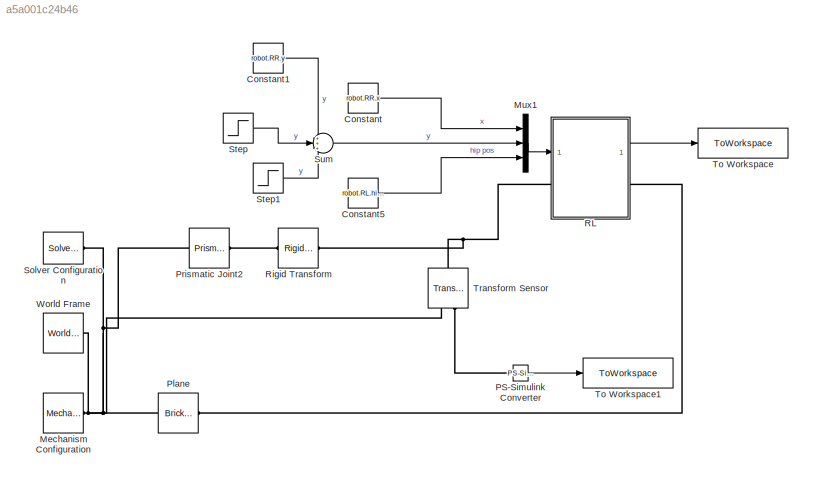
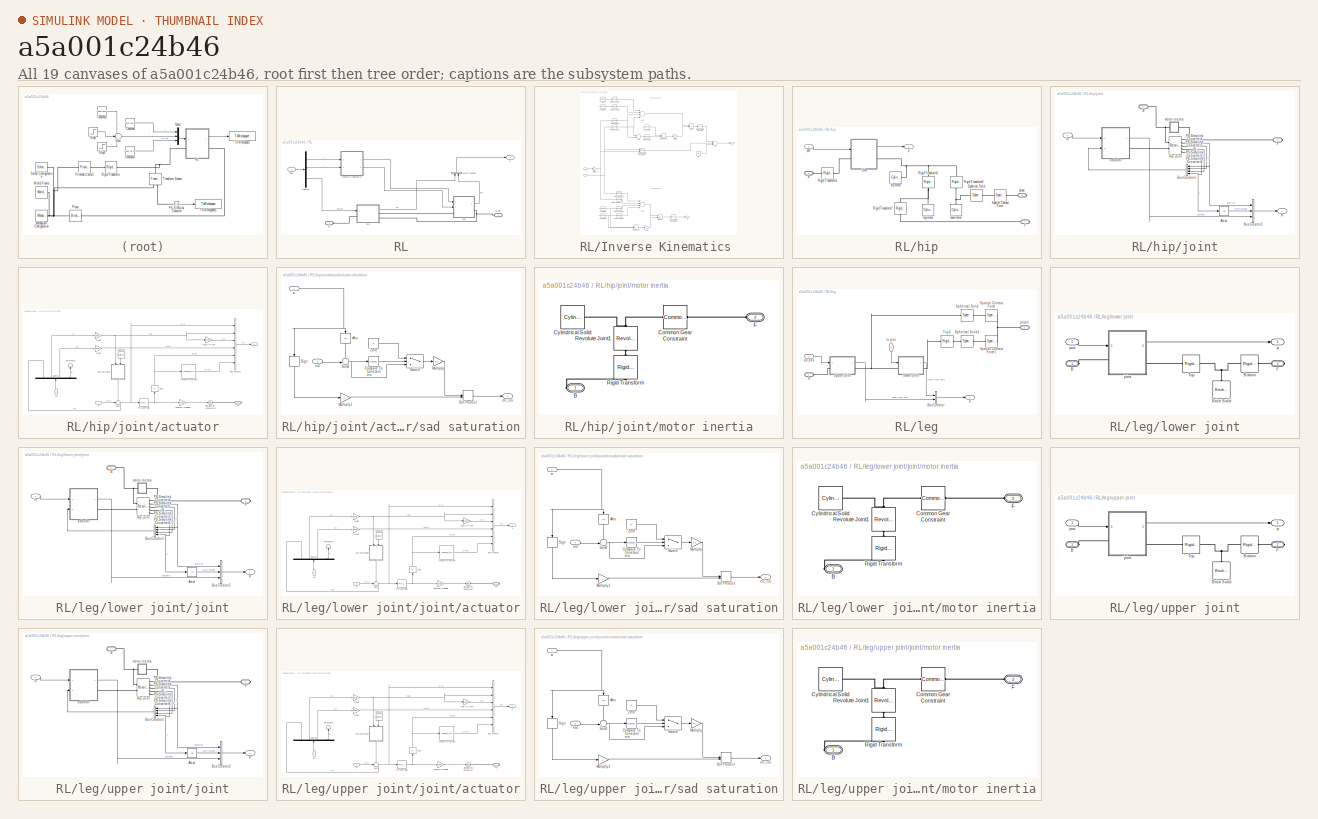
[diagram: thumbnail index - all 19 canvases of the model, root first then tree order]
MODEL slx_a5a001c24b46
KIND model
CONFIG AbsTol = auto
CONFIG EnableMultiTasking = on
CONFIG FixedStep = 0.01
CONFIG MaxStep = auto
CONFIG MinStep = auto
CONFIG RelTol = 1e-3
CONFIG SampleTimeConstraint = Unconstrained
CONFIG Solver = ode23t
CONFIG SolverName = ode23t
CONFIG StartTime = 0.0
CONFIG StopTime = 5
BLOCK [Constant] Constant
  Value = robot.RR.x
BLOCK [Constant] Constant1
  Commented = on
  Value = robot.RR.y
BLOCK [Constant] Constant5
  Value = robot.RL.hip.joint.base_angle
BLOCK [Reference] Mechanism Configuration  REF=sm_lib/Utilities/Mechanism
Configuration
  Ports = [0, 0, 0, 0, 0, 0, 1]
  SourceBlock = sm_lib/Utilities/Mechanism\nConfiguration
  SourceProductBaseCode = MS
  SourceProductName = Simscape Multibody
  SourceType = Mechanism\nConfiguration
BLOCK [Mux] Mux1
  DisplayOption = bar
  Inputs = 3
  Ports = [3, 1]
BLOCK [Reference] PS-Simulink Converter  REF=nesl_utility/PS-Simulink
Converter
  Ports = [0, 1, 0, 0, 0, 1]
  SourceBlock = nesl_utility/PS-Simulink\nConverter
  SourceProductBaseCode = SS
  SourceProductName = Simscape
  SourceType = PS-Simulink\nConverter
BLOCK [Reference] Plane   REF=sm_lib/Body Elements/Brick Solid
  Ports = [0, 0, 0, 0, 0, 1, 1]
  SourceBlock = sm_lib/Body Elements/Brick Solid
  SourceProductBaseCode = MS
  SourceProductName = Simscape Multibody
  SourceType = Brick Solid
BLOCK [Reference] Prismatic Joint2  REF=sm_lib/Joints/Prismatic
Joint
  Ports = [0, 0, 0, 0, 0, 1, 1]
  SourceBlock = sm_lib/Joints/Prismatic\nJoint
  SourceProductBaseCode = MS
  SourceProductName = Simscape Multibody
  SourceType = Prismatic\nJoint
BLOCK [SubSystem] RL
  Ports = [1, 1, 0, 0, 0, 1, 1]
  RequestExecContextInheritance = off
BLOCK [PMIOPort] RL/B
  Port = 2
  Side = Left
BLOCK [BusCreator] RL/Bus Creator
  DisplayOption = bar
  InheritFromInputs = on
  Inputs = 2
  Ports = [2, 1]
BLOCK [Demux] RL/Demux
  DisplayOption = bar
  Outputs = 3
  Ports = [1, 3]
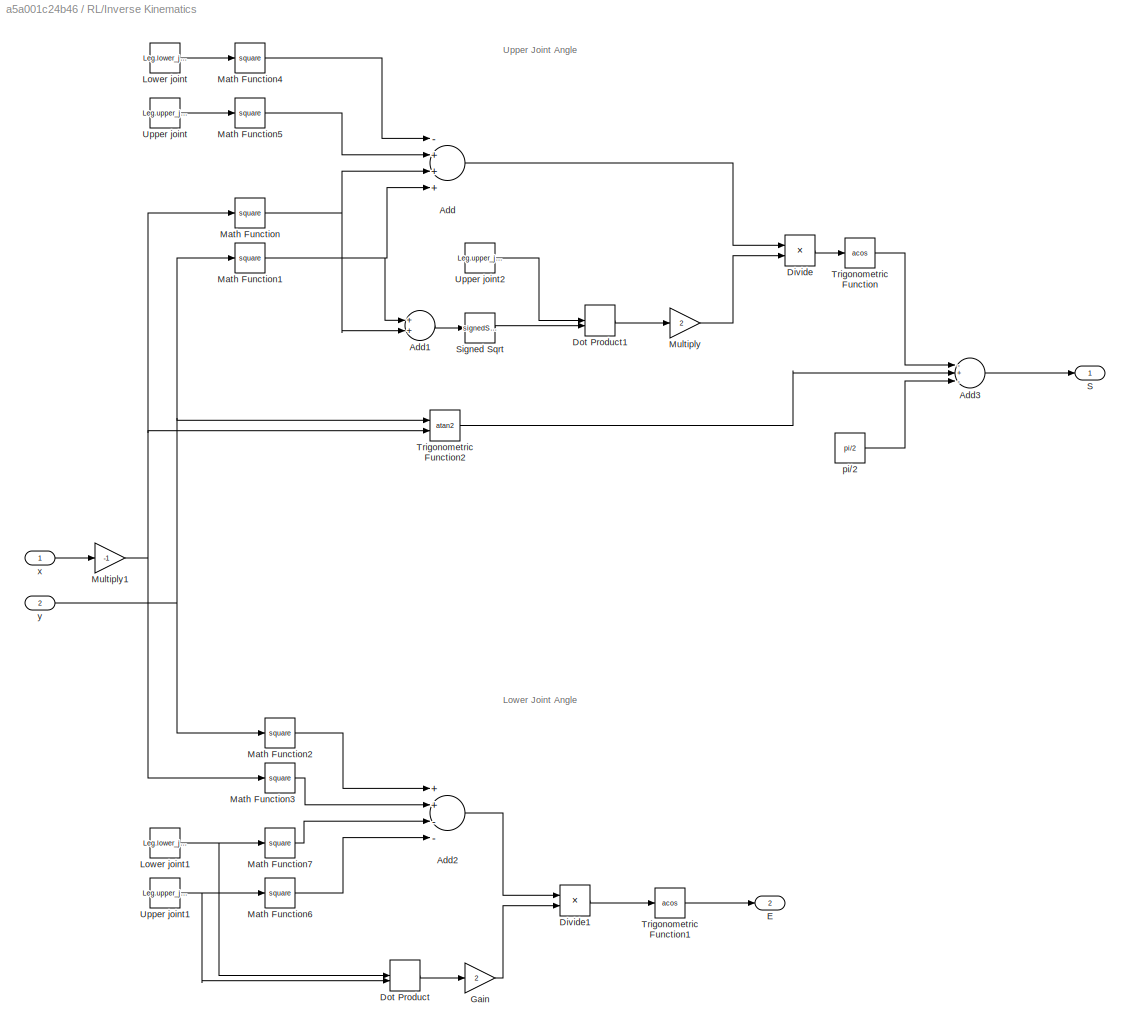
BLOCK [SubSystem] RL/Inverse Kinematics 
  Ports = [2, 2]
  RequestExecContextInheritance = off
BLOCK [Sum] RL/Inverse Kinematics /Add
  InputSameDT = off
  Inputs = -+++
  OutDataTypeStr = Inherit: Inherit via internal rule
  Ports = [4, 1]
  SaturateOnIntegerOverflow = off
BLOCK [Sum] RL/Inverse Kinematics /Add1
  InputSameDT = off
  OutDataTypeStr = Inherit: Inherit via internal rule
  Ports = [2, 1]
  SaturateOnIntegerOverflow = off
BLOCK [Sum] RL/Inverse Kinematics /Add2
  InputSameDT = off
  Inputs = ++--
  OutDataTypeStr = Inherit: Inherit via internal rule
  Ports = [4, 1]
  SaturateOnIntegerOverflow = off
BLOCK [Sum] RL/Inverse Kinematics /Add3
  InputSameDT = off
  Inputs = -+-
  OutDataTypeStr = Inherit: Inherit via internal rule
  Ports = [3, 1]
  SaturateOnIntegerOverflow = off
BLOCK [Product] RL/Inverse Kinematics /Divide
  InputSameDT = off
  Inputs = */
  OutDataTypeStr = Inherit: Inherit via internal rule
  Ports = [2, 1]
  RndMeth = Floor
  SaturateOnIntegerOverflow = off
BLOCK [Product] RL/Inverse Kinematics /Divide1
  InputSameDT = off
  Inputs = */
  OutDataTypeStr = Inherit: Inherit via internal rule
  Ports = [2, 1]
  RndMeth = Floor
  SaturateOnIntegerOverflow = off
BLOCK [DotProduct] RL/Inverse Kinematics /Dot Product
  OutDataTypeStr = Inherit: Inherit via internal rule
BLOCK [DotProduct] RL/Inverse Kinematics /Dot Product1
  OutDataTypeStr = Inherit: Inherit via internal rule
BLOCK [Outport] RL/Inverse Kinematics /E
  IconDisplay = Port number
  Port = 2
BLOCK [Gain] RL/Inverse Kinematics /Gain
  Gain = 2
  OutDataTypeStr = Inherit: Inherit via internal rule
  ParamDataTypeStr = Inherit: Inherit via internal rule
  SaturateOnIntegerOverflow = off
BLOCK [Constant] RL/Inverse Kinematics /Lower joint
  Value = Leg.lower_joint.body.length
BLOCK [Constant] RL/Inverse Kinematics /Lower joint1
  Value = Leg.lower_joint.body.length
BLOCK [Math] RL/Inverse Kinematics /Math Function
  Operator = square
  Ports = [1, 1]
  SignedPower = off
BLOCK [Math] RL/Inverse Kinematics /Math Function1
  Operator = square
  Ports = [1, 1]
  SignedPower = off
BLOCK [Math] RL/Inverse Kinematics /Math Function2
  Operator = square
  Ports = [1, 1]
  SignedPower = off
BLOCK [Math] RL/Inverse Kinematics /Math Function3
  Operator = square
  Ports = [1, 1]
  SignedPower = off
BLOCK [Math] RL/Inverse Kinematics /Math Function4
  Operator = square
  Ports = [1, 1]
  SignedPower = off
BLOCK [Math] RL/Inverse Kinematics /Math Function5
  Operator = square
  Ports = [1, 1]
  SignedPower = off
BLOCK [Math] RL/Inverse Kinematics /Math Function6
  Operator = square
  Ports = [1, 1]
  SignedPower = off
BLOCK [Math] RL/Inverse Kinematics /Math Function7
  Operator = square
  Ports = [1, 1]
  SignedPower = off
BLOCK [Gain] RL/Inverse Kinematics /Multiply
  Gain = 2
  OutDataTypeStr = Inherit: Inherit via internal rule
  ParamDataTypeStr = Inherit: Inherit via internal rule
  SaturateOnIntegerOverflow = off
BLOCK [Gain] RL/Inverse Kinematics /Multiply1
  Gain = -1
  OutDataTypeStr = Inherit: Inherit via internal rule
  ParamDataTypeStr = Inherit: Inherit via internal rule
  SaturateOnIntegerOverflow = off
BLOCK [Outport] RL/Inverse Kinematics /S
  IconDisplay = Port number
BLOCK [Sqrt] RL/Inverse Kinematics /Signed Sqrt
  Operator = signedSqrt
BLOCK [Trigonometry] RL/Inverse Kinematics /Trigonometric Function
  Operator = acos
  Ports = [1, 1]
BLOCK [Trigonometry] RL/Inverse Kinematics /Trigonometric Function1
  Operator = acos
  Ports = [1, 1]
BLOCK [Trigonometry] RL/Inverse Kinematics /Trigonometric Function2
  Operator = atan2
  Ports = [2, 1]
BLOCK [Constant] RL/Inverse Kinematics /Upper joint
  Value = Leg.upper_joint.body.length
BLOCK [Constant] RL/Inverse Kinematics /Upper joint1
  Value = Leg.upper_joint.body.length
BLOCK [Constant] RL/Inverse Kinematics /Upper joint2
  Value = Leg.upper_joint.body.length
BLOCK [Constant] RL/Inverse Kinematics /pi//2
  Value = pi/2
BLOCK [Inport] RL/Inverse Kinematics /x
  IconDisplay = Port number
BLOCK [Inport] RL/Inverse Kinematics /y
  IconDisplay = Port number
  Port = 2
BLOCK [SubSystem] RL/hip
  Ports = [1, 1, 0, 0, 0, 1, 2]
  RequestExecContextInheritance = off
BLOCK [PMIOPort] RL/hip/B
  Side = Left
BLOCK [PMIOPort] RL/hip/F
  Port = 2
  Side = Right
BLOCK [Reference] RL/hip/Rigid Transform1  REF=sm_lib/Frames and
Transforms/Rigid
Transform
  Ports = [0, 0, 0, 0, 0, 1, 1]
  SourceBlock = sm_lib/Frames and\nTransforms/Rigid\nTransform
  SourceProductBaseCode = MS
  SourceProductName = Simscape Multibody
  SourceType = Rigid\nTransform
BLOCK [Reference] RL/hip/Rigid Transform6  REF=sm_lib/Frames and
Transforms/Rigid
Transform
  Ports = [0, 0, 0, 0, 0, 1, 1]
  SourceBlock = sm_lib/Frames and\nTransforms/Rigid\nTransform
  SourceProductBaseCode = MS
  SourceProductName = Simscape Multibody
  SourceType = Rigid\nTransform
BLOCK [Reference] RL/hip/Rigid Transform7  REF=sm_lib/Frames and
Transforms/Rigid
Transform
  Ports = [0, 0, 0, 0, 0, 1, 1]
  SourceBlock = sm_lib/Frames and\nTransforms/Rigid\nTransform
  SourceProductBaseCode = MS
  SourceProductName = Simscape Multibody
  SourceType = Rigid\nTransform
BLOCK [Reference] RL/hip/Rigid Transform8  REF=sm_lib/Frames and
Transforms/Rigid
Transform
  Ports = [0, 0, 0, 0, 0, 1, 1]
  SourceBlock = sm_lib/Frames and\nTransforms/Rigid\nTransform
  SourceProductBaseCode = MS
  SourceProductName = Simscape Multibody
  SourceType = Rigid\nTransform
BLOCK [Reference] RL/hip/Spatial Contact Force  REF=sm_lib/Forces and
Torques/Spatial
Contact Force
  Ports = [0, 0, 0, 0, 0, 1, 1]
  SourceBlock = sm_lib/Forces and\nTorques/Spatial\nContact Force
  SourceProductBaseCode = MS
  SourceProductName = Simscape Multibody
  SourceType = Spatial\nContact Force
BLOCK [Reference] RL/hip/Spherical Solid  REF=sm_lib/Body Elements/Spherical Solid
  Ports = [0, 0, 0, 0, 0, 1, 1]
  SourceBlock = sm_lib/Body Elements/Spherical Solid
  SourceProductBaseCode = MS
  SourceProductName = Simscape Multibody
  SourceType = Spherical Solid
BLOCK [Reference] RL/hip/hip motor  REF=sm_lib/Body Elements/Cylindrical Solid
  Ports = [0, 0, 0, 0, 0, 0, 1]
  SourceBlock = sm_lib/Body Elements/Cylindrical Solid
  SourceProductBaseCode = MS
  SourceProductName = Simscape Multibody
  SourceType = Cylindrical Solid
BLOCK [SubSystem] RL/hip/joint
  Ports = [1, 1, 0, 0, 0, 1, 1]
  RequestExecContextInheritance = off
BLOCK [Abs] RL/hip/joint/Abs1
  SaturateOnIntegerOverflow = off
BLOCK [PMIOPort] RL/hip/joint/B
  Side = Left
BLOCK [BusCreator] RL/hip/joint/Bus Creator1
  DisplayOption = bar
  InheritFromInputs = on
  Inputs = 4
  Ports = [4, 1]
BLOCK [BusCreator] RL/hip/joint/Bus Creator2
  DisplayOption = bar
  InheritFromInputs = on
  Inputs = 3
  Ports = [3, 1]
BLOCK [PMIOPort] RL/hip/joint/F
  Port = 2
  Side = Right
BLOCK [Reference] RL/hip/joint/Hip joint   REF=sm_lib/Joints/Revolute Joint
  Ports = [0, 0, 0, 0, 0, 2, 5]
  SourceBlock = sm_lib/Joints/Revolute Joint
  SourceProductBaseCode = MS
  SourceProductName = Simscape Multibody
  SourceType = Revolute Joint
BLOCK [Reference] RL/hip/joint/PS-Simulink Converter3  REF=nesl_utility/PS-Simulink
Converter
  Ports = [0, 1, 0, 0, 0, 1]
  SourceBlock = nesl_utility/PS-Simulink\nConverter
  SourceProductBaseCode = SS
  SourceProductName = Simscape
  SourceType = PS-Simulink\nConverter
BLOCK [Reference] RL/hip/joint/PS-Simulink Converter4  REF=nesl_utility/PS-Simulink
Converter
  Ports = [0, 1, 0, 0, 0, 1]
  SourceBlock = nesl_utility/PS-Simulink\nConverter
  SourceProductBaseCode = SS
  SourceProductName = Simscape
  SourceType = PS-Simulink\nConverter
BLOCK [Reference] RL/hip/joint/PS-Simulink Converter5  REF=nesl_utility/PS-Simulink
Converter
  Ports = [0, 1, 0, 0, 0, 1]
  SourceBlock = nesl_utility/PS-Simulink\nConverter
  SourceProductBaseCode = SS
  SourceProductName = Simscape
  SourceType = PS-Simulink\nConverter
BLOCK [Reference] RL/hip/joint/PS-Simulink Converter6  REF=nesl_utility/PS-Simulink
Converter
  Ports = [0, 1, 0, 0, 0, 1]
  SourceBlock = nesl_utility/PS-Simulink\nConverter
  SourceProductBaseCode = SS
  SourceProductName = Simscape
  SourceType = PS-Simulink\nConverter
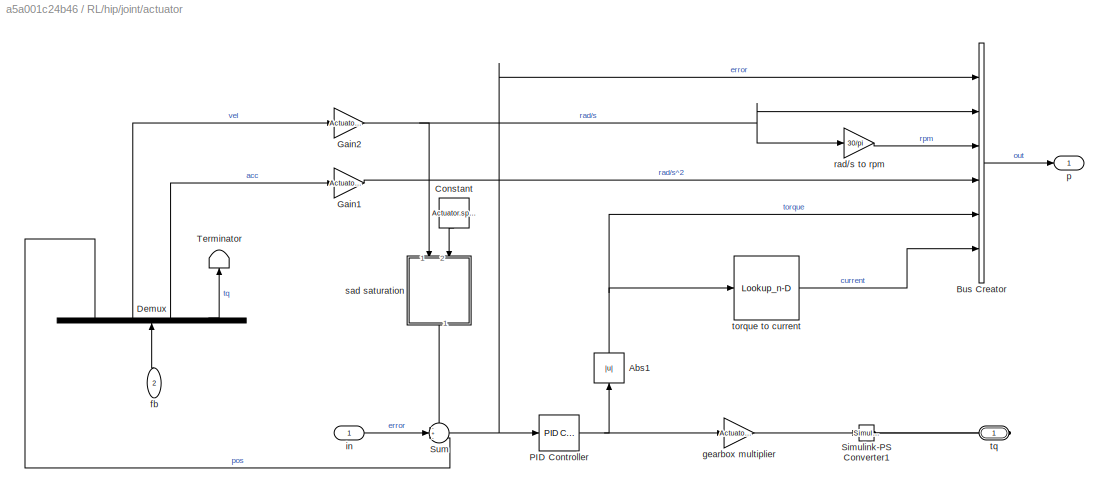
BLOCK [SubSystem] RL/hip/joint/actuator
  Ports = [2, 1, 0, 0, 0, 0, 1]
  RequestExecContextInheritance = off
BLOCK [Abs] RL/hip/joint/actuator/Abs1
  SaturateOnIntegerOverflow = off
BLOCK [BusCreator] RL/hip/joint/actuator/Bus Creator
  DisplayOption = bar
  InheritFromInputs = on
  Inputs = 6
  Ports = [6, 1]
BLOCK [Constant] RL/hip/joint/actuator/Constant
  Value = Actuator.speed_lim
BLOCK [Demux] RL/hip/joint/actuator/Demux
  DisplayOption = bar
  Ports = [1, 4]
BLOCK [Gain] RL/hip/joint/actuator/Gain1
  Gain = Actuator.gear_ratio
  OutDataTypeStr = Inherit: Inherit via internal rule
  ParamDataTypeStr = Inherit: Inherit via internal rule
  SaturateOnIntegerOverflow = off
BLOCK [Gain] RL/hip/joint/actuator/Gain2
  Gain = Actuator.gear_ratio
  OutDataTypeStr = Inherit: Inherit via internal rule
  ParamDataTypeStr = Inherit: Inherit via internal rule
  SaturateOnIntegerOverflow = off
BLOCK [Reference] RL/hip/joint/actuator/PID Controller  REF=simulink/Continuous/PID Controller
  Ports = [1, 1]
  SourceBlock = simulink/Continuous/PID Controller
  SourceProductBaseCode = SL
  SourceProductName = Simulink
  SourceType = PID 1dof
BLOCK [Reference] RL/hip/joint/actuator/Simulink-PS Converter1  REF=nesl_utility/Simulink-PS
Converter
  Ports = [1, 0, 0, 0, 0, 0, 1]
  SourceBlock = nesl_utility/Simulink-PS\nConverter
  SourceProductBaseCode = SS
  SourceProductName = Simscape
  SourceType = Simulink-PS\nConverter
BLOCK [Sum] RL/hip/joint/actuator/Sum
  IconShape = round
  InputSameDT = off
  Inputs = -+-
  OutDataTypeStr = Inherit: Inherit via internal rule
  Ports = [3, 1]
  SaturateOnIntegerOverflow = off
BLOCK [Terminator] RL/hip/joint/actuator/Terminator
BLOCK [Inport] RL/hip/joint/actuator/fb
  IconDisplay = Port number
  Port = 2
BLOCK [Gain] RL/hip/joint/actuator/gearbox multiplier
  Gain = Actuator.gear_ratio
  OutDataTypeStr = Inherit: Inherit via internal rule
  ParamDataTypeStr = Inherit: Inherit via internal rule
  SaturateOnIntegerOverflow = off
BLOCK [Inport] RL/hip/joint/actuator/in
  IconDisplay = Port number
BLOCK [Outport] RL/hip/joint/actuator/p
  IconDisplay = Port number
BLOCK [Gain] RL/hip/joint/actuator/rad//s to rpm
  Gain = 30/pi
  OutDataTypeStr = Inherit: Inherit via internal rule
  ParamDataTypeStr = Inherit: Inherit via internal rule
  SaturateOnIntegerOverflow = off
BLOCK [SubSystem] RL/hip/joint/actuator/sad saturation
  Ports = [2, 1]
  RequestExecContextInheritance = off
BLOCK [Abs] RL/hip/joint/actuator/sad saturation/Abs
  SaturateOnIntegerOverflow = off
BLOCK [Reference] RL/hip/joint/actuator/sad saturation/Compare To Constant  REF=simulink/Logic and Bit
Operations/Compare
To Constant
  Ports = [1, 1]
  SourceBlock = simulink/Logic and Bit\nOperations/Compare\nTo Constant
  SourceProductBaseCode = SL
  SourceProductName = Simulink
  SourceType = Compare To Constant
BLOCK [DotProduct] RL/hip/joint/actuator/sad saturation/Dot Product
  OutDataTypeStr = Inherit: Inherit via internal rule
BLOCK [Gain] RL/hip/joint/actuator/sad saturation/Multiply
  Gain = 0.1
  OutDataTypeStr = Inherit: Inherit via internal rule
  ParamDataTypeStr = Inherit: Inherit via internal rule
  SaturateOnIntegerOverflow = off
BLOCK [Gain] RL/hip/joint/actuator/sad saturation/Multiply1
  Gain = -1
  OutDataTypeStr = Inherit: Inherit via internal rule
  ParamDataTypeStr = Inherit: Inherit via internal rule
  SaturateOnIntegerOverflow = off
BLOCK [Signum] RL/hip/joint/actuator/sad saturation/Sign
BLOCK [Sum] RL/hip/joint/actuator/sad saturation/Sum2
  IconShape = round
  InputSameDT = off
  Inputs = -+|
  OutDataTypeStr = Inherit: Inherit via internal rule
  Ports = [2, 1]
  SaturateOnIntegerOverflow = off
BLOCK [Switch] RL/hip/joint/actuator/sad saturation/Switch
  Criteria = u2 > Threshold
  InputSameDT = off
  SaturateOnIntegerOverflow = off
BLOCK [Constant] RL/hip/joint/actuator/sad saturation/Zero
  OutDataTypeStr = Inherit: Inherit via back propagation
  Value = 0
BLOCK [Outport] RL/hip/joint/actuator/sad saturation/err_cor
  IconDisplay = Port number
BLOCK [Inport] RL/hip/joint/actuator/sad saturation/sat
  IconDisplay = Port number
  Port = 2
BLOCK [Inport] RL/hip/joint/actuator/sad saturation/w
  IconDisplay = Port number
BLOCK [Lookup_n-D] RL/hip/joint/actuator/torque to current
  BreakpointsForDimension1 = Actuator.torque_to_current(1,:)
  InternalRulePriority = Speed
  NumberOfTableDimensions = 1
  Ports = [1, 1]
  RndMeth = Simplest
  Table = Actuator.torque_to_current(2,:)
BLOCK [PMIOPort] RL/hip/joint/actuator/tq
  Side = Right
BLOCK [Inport] RL/hip/joint/in
  IconDisplay = Port number
BLOCK [SubSystem] RL/hip/joint/motor inertia
  Ports = [0, 0, 0, 0, 0, 1, 1]
  RequestExecContextInheritance = off
BLOCK [PMIOPort] RL/hip/joint/motor inertia/B
  Side = Right
BLOCK [Reference] RL/hip/joint/motor inertia/Common Gear Constraint  REF=sm_lib/Gears and
Couplings/Gears/Common Gear
Constraint
  Ports = [0, 0, 0, 0, 0, 1, 1]
  SourceBlock = sm_lib/Gears and\nCouplings/Gears/Common Gear\nConstraint
  SourceProductBaseCode = MS
  SourceProductName = Simscape Multibody
  SourceType = Common Gear\nConstraint
BLOCK [Reference] RL/hip/joint/motor inertia/Cylindrical Solid  REF=sm_lib/Body Elements/Cylindrical Solid
  Ports = [0, 0, 0, 0, 0, 0, 1]
  SourceBlock = sm_lib/Body Elements/Cylindrical Solid
  SourceProductBaseCode = MS
  SourceProductName = Simscape Multibody
  SourceType = Cylindrical Solid
BLOCK [PMIOPort] RL/hip/joint/motor inertia/F
  Port = 2
  Side = Left
BLOCK [Reference] RL/hip/joint/motor inertia/Revolute Joint1  REF=sm_lib/Joints/Revolute Joint
  Ports = [0, 0, 0, 0, 0, 1, 1]
  SourceBlock = sm_lib/Joints/Revolute Joint
  SourceProductBaseCode = MS
  SourceProductName = Simscape Multibody
  SourceType = Revolute Joint
BLOCK [Reference] RL/hip/joint/motor inertia/Rigid Transform  REF=sm_lib/Frames and
Transforms/Rigid
Transform
  Ports = [0, 0, 0, 0, 0, 1, 1]
  SourceBlock = sm_lib/Frames and\nTransforms/Rigid\nTransform
  SourceProductBaseCode = MS
  SourceProductName = Simscape Multibody
  SourceType = Rigid\nTransform
BLOCK [Outport] RL/hip/joint/p
  IconDisplay = Port number
BLOCK [Reference] RL/hip/knee motor  REF=sm_lib/Body Elements/Cylindrical Solid
  Ports = [0, 0, 0, 0, 0, 0, 1]
  SourceBlock = sm_lib/Body Elements/Cylindrical Solid
  SourceProductBaseCode = MS
  SourceProductName = Simscape Multibody
  SourceType = Cylindrical Solid
BLOCK [Reference] RL/hip/leg motor  REF=sm_lib/Body Elements/Cylindrical Solid
  Ports = [0, 0, 0, 0, 0, 0, 1]
  SourceBlock = sm_lib/Body Elements/Cylindrical Solid
  SourceProductBaseCode = MS
  SourceProductName = Simscape Multibody
  SourceType = Cylindrical Solid
BLOCK [Outport] RL/hip/p
  IconDisplay = Port number
BLOCK [PMIOPort] RL/hip/plane
  Port = 3
  Side = Right
BLOCK [Inport] RL/hip/pos
  IconDisplay = Port number
BLOCK [SubSystem] RL/leg
  Ports = [2, 1, 0, 0, 0, 1, 1]
  RequestExecContextInheritance = off
BLOCK [PMIOPort] RL/leg/B
  Side = Left
BLOCK [BusCreator] RL/leg/Bus Creator
  DisplayOption = bar
  InheritFromInputs = on
  Inputs = 2
  Ports = [2, 1]
BLOCK [Reference] RL/leg/Spatial Contact Force  REF=sm_lib/Forces and
Torques/Spatial
Contact Force
  Ports = [0, 0, 0, 0, 0, 1, 1]
  SourceBlock = sm_lib/Forces and\nTorques/Spatial\nContact Force
  SourceProductBaseCode = MS
  SourceProductName = Simscape Multibody
  SourceType = Spatial\nContact Force
BLOCK [Reference] RL/leg/Spatial Contact Force1  REF=sm_lib/Forces and
Torques/Spatial
Contact Force
  Ports = [0, 0, 0, 0, 0, 1, 1]
  SourceBlock = sm_lib/Forces and\nTorques/Spatial\nContact Force
  SourceProductBaseCode = MS
  SourceProductName = Simscape Multibody
  SourceType = Spatial\nContact Force
BLOCK [Reference] RL/leg/Spherical Solid  REF=sm_lib/Body Elements/Spherical Solid
  Ports = [0, 0, 0, 0, 0, 1, 1]
  SourceBlock = sm_lib/Body Elements/Spherical Solid
  SourceProductBaseCode = MS
  SourceProductName = Simscape Multibody
  SourceType = Spherical Solid
BLOCK [Reference] RL/leg/Spherical Solid1  REF=sm_lib/Body Elements/Spherical Solid
  Ports = [0, 0, 0, 0, 0, 1, 1]
  SourceBlock = sm_lib/Body Elements/Spherical Solid
  SourceProductBaseCode = MS
  SourceProductName = Simscape Multibody
  SourceType = Spherical Solid
BLOCK [Reference] RL/leg/Top2  REF=sm_lib/Frames and
Transforms/Rigid
Transform
  Ports = [0, 0, 0, 0, 0, 1, 1]
  SourceBlock = sm_lib/Frames and\nTransforms/Rigid\nTransform
  SourceProductBaseCode = MS
  SourceProductName = Simscape Multibody
  SourceType = Rigid\nTransform
BLOCK [Inport] RL/leg/lo pos
  IconDisplay = Port number
  Port = 2
BLOCK [SubSystem] RL/leg/lower joint
  Ports = [1, 1, 0, 0, 0, 1, 1]
  RequestExecContextInheritance = off
BLOCK [PMIOPort] RL/leg/lower joint/B 
  Side = Left
BLOCK [Reference] RL/leg/lower joint/Bottom  REF=sm_lib/Frames and
Transforms/Rigid
Transform
  Ports = [0, 0, 0, 0, 0, 1, 1]
  SourceBlock = sm_lib/Frames and\nTransforms/Rigid\nTransform
  SourceProductBaseCode = MS
  SourceProductName = Simscape Multibody
  SourceType = Rigid\nTransform
BLOCK [Reference] RL/leg/lower joint/Brick Solid  REF=sm_lib/Body Elements/Brick Solid
  Ports = [0, 0, 0, 0, 0, 0, 1]
  SourceBlock = sm_lib/Body Elements/Brick Solid
  SourceProductBaseCode = MS
  SourceProductName = Simscape Multibody
  SourceType = Brick Solid
BLOCK [PMIOPort] RL/leg/lower joint/F
  Port = 2
  Side = Right
BLOCK [Reference] RL/leg/lower joint/Top  REF=sm_lib/Frames and
Transforms/Rigid
Transform
  Ports = [0, 0, 0, 0, 0, 1, 1]
  SourceBlock = sm_lib/Frames and\nTransforms/Rigid\nTransform
  SourceProductBaseCode = MS
  SourceProductName = Simscape Multibody
  SourceType = Rigid\nTransform
BLOCK [SubSystem] RL/leg/lower joint/joint
  Ports = [1, 1, 0, 0, 0, 1, 1]
  RequestExecContextInheritance = off
BLOCK [Abs] RL/leg/lower joint/joint/Abs1
  SaturateOnIntegerOverflow = off
BLOCK [PMIOPort] RL/leg/lower joint/joint/B
  Side = Left
BLOCK [BusCreator] RL/leg/lower joint/joint/Bus Creator1
  DisplayOption = bar
  InheritFromInputs = on
  Inputs = 4
  Ports = [4, 1]
BLOCK [BusCreator] RL/leg/lower joint/joint/Bus Creator2
  DisplayOption = bar
  InheritFromInputs = on
  Inputs = 3
  Ports = [3, 1]
BLOCK [PMIOPort] RL/leg/lower joint/joint/F
  Port = 2
  Side = Right
BLOCK [Reference] RL/leg/lower joint/joint/Hip joint   REF=sm_lib/Joints/Revolute Joint
  Ports = [0, 0, 0, 0, 0, 2, 5]
  SourceBlock = sm_lib/Joints/Revolute Joint
  SourceProductBaseCode = MS
  SourceProductName = Simscape Multibody
  SourceType = Revolute Joint
BLOCK [Reference] RL/leg/lower joint/joint/PS-Simulink Converter3  REF=nesl_utility/PS-Simulink
Converter
  Ports = [0, 1, 0, 0, 0, 1]
  SourceBlock = nesl_utility/PS-Simulink\nConverter
  SourceProductBaseCode = SS
  SourceProductName = Simscape
  SourceType = PS-Simulink\nConverter
BLOCK [Reference] RL/leg/lower joint/joint/PS-Simulink Converter4  REF=nesl_utility/PS-Simulink
Converter
  Ports = [0, 1, 0, 0, 0, 1]
  SourceBlock = nesl_utility/PS-Simulink\nConverter
  SourceProductBaseCode = SS
  SourceProductName = Simscape
  SourceType = PS-Simulink\nConverter
BLOCK [Reference] RL/leg/lower joint/joint/PS-Simulink Converter5  REF=nesl_utility/PS-Simulink
Converter
  Ports = [0, 1, 0, 0, 0, 1]
  SourceBlock = nesl_utility/PS-Simulink\nConverter
  SourceProductBaseCode = SS
  SourceProductName = Simscape
  SourceType = PS-Simulink\nConverter
BLOCK [Reference] RL/leg/lower joint/joint/PS-Simulink Converter6  REF=nesl_utility/PS-Simulink
Converter
  Ports = [0, 1, 0, 0, 0, 1]
  SourceBlock = nesl_utility/PS-Simulink\nConverter
  SourceProductBaseCode = SS
  SourceProductName = Simscape
  SourceType = PS-Simulink\nConverter
BLOCK [SubSystem] RL/leg/lower joint/joint/actuator
  Ports = [2, 1, 0, 0, 0, 0, 1]
  RequestExecContextInheritance = off
BLOCK [Abs] RL/leg/lower joint/joint/actuator/Abs1
  SaturateOnIntegerOverflow = off
BLOCK [BusCreator] RL/leg/lower joint/joint/actuator/Bus Creator
  DisplayOption = bar
  InheritFromInputs = on
  Inputs = 6
  Ports = [6, 1]
BLOCK [Constant] RL/leg/lower joint/joint/actuator/Constant
  Value = Actuator.speed_lim
BLOCK [Demux] RL/leg/lower joint/joint/actuator/Demux
  DisplayOption = bar
  Ports = [1, 4]
BLOCK [Gain] RL/leg/lower joint/joint/actuator/Gain1
  Gain = Actuator.gear_ratio
  OutDataTypeStr = Inherit: Inherit via internal rule
  ParamDataTypeStr = Inherit: Inherit via internal rule
  SaturateOnIntegerOverflow = off
BLOCK [Gain] RL/leg/lower joint/joint/actuator/Gain2
  Gain = Actuator.gear_ratio
  OutDataTypeStr = Inherit: Inherit via internal rule
  ParamDataTypeStr = Inherit: Inherit via internal rule
  SaturateOnIntegerOverflow = off
BLOCK [Reference] RL/leg/lower joint/joint/actuator/PID Controller  REF=simulink/Continuous/PID Controller
  Ports = [1, 1]
  SourceBlock = simulink/Continuous/PID Controller
  SourceProductBaseCode = SL
  SourceProductName = Simulink
  SourceType = PID 1dof
BLOCK [Reference] RL/leg/lower joint/joint/actuator/Simulink-PS Converter1  REF=nesl_utility/Simulink-PS
Converter
  Ports = [1, 0, 0, 0, 0, 0, 1]
  SourceBlock = nesl_utility/Simulink-PS\nConverter
  SourceProductBaseCode = SS
  SourceProductName = Simscape
  SourceType = Simulink-PS\nConverter
BLOCK [Sum] RL/leg/lower joint/joint/actuator/Sum
  IconShape = round
  InputSameDT = off
  Inputs = -+-
  OutDataTypeStr = Inherit: Inherit via internal rule
  Ports = [3, 1]
  SaturateOnIntegerOverflow = off
BLOCK [Terminator] RL/leg/lower joint/joint/actuator/Terminator
BLOCK [Inport] RL/leg/lower joint/joint/actuator/fb
  IconDisplay = Port number
  Port = 2
BLOCK [Gain] RL/leg/lower joint/joint/actuator/gearbox multiplier
  Gain = Actuator.gear_ratio
  OutDataTypeStr = Inherit: Inherit via internal rule
  ParamDataTypeStr = Inherit: Inherit via internal rule
  SaturateOnIntegerOverflow = off
BLOCK [Inport] RL/leg/lower joint/joint/actuator/in
  IconDisplay = Port number
BLOCK [Outport] RL/leg/lower joint/joint/actuator/p
  IconDisplay = Port number
BLOCK [Gain] RL/leg/lower joint/joint/actuator/rad//s to rpm
  Gain = 30/pi
  OutDataTypeStr = Inherit: Inherit via internal rule
  ParamDataTypeStr = Inherit: Inherit via internal rule
  SaturateOnIntegerOverflow = off
BLOCK [SubSystem] RL/leg/lower joint/joint/actuator/sad saturation
  Ports = [2, 1]
  RequestExecContextInheritance = off
BLOCK [Abs] RL/leg/lower joint/joint/actuator/sad saturation/Abs
  SaturateOnIntegerOverflow = off
BLOCK [Reference] RL/leg/lower joint/joint/actuator/sad saturation/Compare To Constant  REF=simulink/Logic and Bit
Operations/Compare
To Constant
  Ports = [1, 1]
  SourceBlock = simulink/Logic and Bit\nOperations/Compare\nTo Constant
  SourceProductBaseCode = SL
  SourceProductName = Simulink
  SourceType = Compare To Constant
BLOCK [DotProduct] RL/leg/lower joint/joint/actuator/sad saturation/Dot Product
  OutDataTypeStr = Inherit: Inherit via internal rule
BLOCK [Gain] RL/leg/lower joint/joint/actuator/sad saturation/Multiply
  Gain = 0.1
  OutDataTypeStr = Inherit: Inherit via internal rule
  ParamDataTypeStr = Inherit: Inherit via internal rule
  SaturateOnIntegerOverflow = off
BLOCK [Gain] RL/leg/lower joint/joint/actuator/sad saturation/Multiply1
  Gain = -1
  OutDataTypeStr = Inherit: Inherit via internal rule
  ParamDataTypeStr = Inherit: Inherit via internal rule
  SaturateOnIntegerOverflow = off
BLOCK [Signum] RL/leg/lower joint/joint/actuator/sad saturation/Sign
BLOCK [Sum] RL/leg/lower joint/joint/actuator/sad saturation/Sum2
  IconShape = round
  InputSameDT = off
  Inputs = -+|
  OutDataTypeStr = Inherit: Inherit via internal rule
  Ports = [2, 1]
  SaturateOnIntegerOverflow = off
BLOCK [Switch] RL/leg/lower joint/joint/actuator/sad saturation/Switch
  Criteria = u2 > Threshold
  InputSameDT = off
  SaturateOnIntegerOverflow = off
BLOCK [Constant] RL/leg/lower joint/joint/actuator/sad saturation/Zero
  OutDataTypeStr = Inherit: Inherit via back propagation
  Value = 0
BLOCK [Outport] RL/leg/lower joint/joint/actuator/sad saturation/err_cor
  IconDisplay = Port number
BLOCK [Inport] RL/leg/lower joint/joint/actuator/sad saturation/sat
  IconDisplay = Port number
  Port = 2
BLOCK [Inport] RL/leg/lower joint/joint/actuator/sad saturation/w
  IconDisplay = Port number
BLOCK [Lookup_n-D] RL/leg/lower joint/joint/actuator/torque to current
  BreakpointsForDimension1 = Actuator.torque_to_current(1,:)
  InternalRulePriority = Speed
  NumberOfTableDimensions = 1
  Ports = [1, 1]
  RndMeth = Simplest
  Table = Actuator.torque_to_current(2,:)
BLOCK [PMIOPort] RL/leg/lower joint/joint/actuator/tq
  Side = Right
BLOCK [Inport] RL/leg/lower joint/joint/in
  IconDisplay = Port number
BLOCK [SubSystem] RL/leg/lower joint/joint/motor inertia
  Ports = [0, 0, 0, 0, 0, 1, 1]
  RequestExecContextInheritance = off
BLOCK [PMIOPort] RL/leg/lower joint/joint/motor inertia/B
  Side = Right
BLOCK [Reference] RL/leg/lower joint/joint/motor inertia/Common Gear Constraint  REF=sm_lib/Gears and
Couplings/Gears/Common Gear
Constraint
  Ports = [0, 0, 0, 0, 0, 1, 1]
  SourceBlock = sm_lib/Gears and\nCouplings/Gears/Common Gear\nConstraint
  SourceProductBaseCode = MS
  SourceProductName = Simscape Multibody
  SourceType = Common Gear\nConstraint
BLOCK [Reference] RL/leg/lower joint/joint/motor inertia/Cylindrical Solid  REF=sm_lib/Body Elements/Cylindrical Solid
  Ports = [0, 0, 0, 0, 0, 0, 1]
  SourceBlock = sm_lib/Body Elements/Cylindrical Solid
  SourceProductBaseCode = MS
  SourceProductName = Simscape Multibody
  SourceType = Cylindrical Solid
BLOCK [PMIOPort] RL/leg/lower joint/joint/motor inertia/F
  Port = 2
  Side = Left
BLOCK [Reference] RL/leg/lower joint/joint/motor inertia/Revolute Joint1  REF=sm_lib/Joints/Revolute Joint
  Ports = [0, 0, 0, 0, 0, 1, 1]
  SourceBlock = sm_lib/Joints/Revolute Joint
  SourceProductBaseCode = MS
  SourceProductName = Simscape Multibody
  SourceType = Revolute Joint
BLOCK [Reference] RL/leg/lower joint/joint/motor inertia/Rigid Transform  REF=sm_lib/Frames and
Transforms/Rigid
Transform
  Ports = [0, 0, 0, 0, 0, 1, 1]
  SourceBlock = sm_lib/Frames and\nTransforms/Rigid\nTransform
  SourceProductBaseCode = MS
  SourceProductName = Simscape Multibody
  SourceType = Rigid\nTransform
BLOCK [Outport] RL/leg/lower joint/joint/p
  IconDisplay = Port number
BLOCK [Outport] RL/leg/lower joint/p
  IconDisplay = Port number
BLOCK [Inport] RL/leg/lower joint/pos
  IconDisplay = Port number
BLOCK [Outport] RL/leg/p
  IconDisplay = Port number
BLOCK [PMIOPort] RL/leg/plane
  Port = 2
  Side = Right
BLOCK [Inport] RL/leg/up pos
  IconDisplay = Port number
BLOCK [SubSystem] RL/leg/upper joint
  Ports = [1, 1, 0, 0, 0, 1, 1]
  RequestExecContextInheritance = off
BLOCK [PMIOPort] RL/leg/upper joint/B 
  Side = Left
BLOCK [Reference] RL/leg/upper joint/Bottom  REF=sm_lib/Frames and
Transforms/Rigid
Transform
  Ports = [0, 0, 0, 0, 0, 1, 1]
  SourceBlock = sm_lib/Frames and\nTransforms/Rigid\nTransform
  SourceProductBaseCode = MS
  SourceProductName = Simscape Multibody
  SourceType = Rigid\nTransform
BLOCK [Reference] RL/leg/upper joint/Brick Solid  REF=sm_lib/Body Elements/Brick Solid
  Ports = [0, 0, 0, 0, 0, 0, 1]
  SourceBlock = sm_lib/Body Elements/Brick Solid
  SourceProductBaseCode = MS
  SourceProductName = Simscape Multibody
  SourceType = Brick Solid
BLOCK [PMIOPort] RL/leg/upper joint/F
  Port = 2
  Side = Right
BLOCK [Reference] RL/leg/upper joint/Top  REF=sm_lib/Frames and
Transforms/Rigid
Transform
  Ports = [0, 0, 0, 0, 0, 1, 1]
  SourceBlock = sm_lib/Frames and\nTransforms/Rigid\nTransform
  SourceProductBaseCode = MS
  SourceProductName = Simscape Multibody
  SourceType = Rigid\nTransform
BLOCK [SubSystem] RL/leg/upper joint/joint
  Ports = [1, 1, 0, 0, 0, 1, 1]
  RequestExecContextInheritance = off
BLOCK [Abs] RL/leg/upper joint/joint/Abs1
  SaturateOnIntegerOverflow = off
BLOCK [PMIOPort] RL/leg/upper joint/joint/B
  Side = Left
BLOCK [BusCreator] RL/leg/upper joint/joint/Bus Creator1
  DisplayOption = bar
  InheritFromInputs = on
  Inputs = 4
  Ports = [4, 1]
BLOCK [BusCreator] RL/leg/upper joint/joint/Bus Creator2
  DisplayOption = bar
  InheritFromInputs = on
  Inputs = 3
  Ports = [3, 1]
BLOCK [PMIOPort] RL/leg/upper joint/joint/F
  Port = 2
  Side = Right
BLOCK [Reference] RL/leg/upper joint/joint/Hip joint   REF=sm_lib/Joints/Revolute Joint
  Ports = [0, 0, 0, 0, 0, 2, 5]
  SourceBlock = sm_lib/Joints/Revolute Joint
  SourceProductBaseCode = MS
  SourceProductName = Simscape Multibody
  SourceType = Revolute Joint
BLOCK [Reference] RL/leg/upper joint/joint/PS-Simulink Converter3  REF=nesl_utility/PS-Simulink
Converter
  Ports = [0, 1, 0, 0, 0, 1]
  SourceBlock = nesl_utility/PS-Simulink\nConverter
  SourceProductBaseCode = SS
  SourceProductName = Simscape
  SourceType = PS-Simulink\nConverter
BLOCK [Reference] RL/leg/upper joint/joint/PS-Simulink Converter4  REF=nesl_utility/PS-Simulink
Converter
  Ports = [0, 1, 0, 0, 0, 1]
  SourceBlock = nesl_utility/PS-Simulink\nConverter
  SourceProductBaseCode = SS
  SourceProductName = Simscape
  SourceType = PS-Simulink\nConverter
BLOCK [Reference] RL/leg/upper joint/joint/PS-Simulink Converter5  REF=nesl_utility/PS-Simulink
Converter
  Ports = [0, 1, 0, 0, 0, 1]
  SourceBlock = nesl_utility/PS-Simulink\nConverter
  SourceProductBaseCode = SS
  SourceProductName = Simscape
  SourceType = PS-Simulink\nConverter
BLOCK [Reference] RL/leg/upper joint/joint/PS-Simulink Converter6  REF=nesl_utility/PS-Simulink
Converter
  Ports = [0, 1, 0, 0, 0, 1]
  SourceBlock = nesl_utility/PS-Simulink\nConverter
  SourceProductBaseCode = SS
  SourceProductName = Simscape
  SourceType = PS-Simulink\nConverter
BLOCK [SubSystem] RL/leg/upper joint/joint/actuator
  Ports = [2, 1, 0, 0, 0, 0, 1]
  RequestExecContextInheritance = off
BLOCK [Abs] RL/leg/upper joint/joint/actuator/Abs1
  SaturateOnIntegerOverflow = off
BLOCK [BusCreator] RL/leg/upper joint/joint/actuator/Bus Creator
  DisplayOption = bar
  InheritFromInputs = on
  Inputs = 6
  Ports = [6, 1]
BLOCK [Constant] RL/leg/upper joint/joint/actuator/Constant
  Value = Actuator.speed_lim
BLOCK [Demux] RL/leg/upper joint/joint/actuator/Demux
  DisplayOption = bar
  Ports = [1, 4]
BLOCK [Gain] RL/leg/upper joint/joint/actuator/Gain1
  Gain = Actuator.gear_ratio
  OutDataTypeStr = Inherit: Inherit via internal rule
  ParamDataTypeStr = Inherit: Inherit via internal rule
  SaturateOnIntegerOverflow = off
BLOCK [Gain] RL/leg/upper joint/joint/actuator/Gain2
  Gain = Actuator.gear_ratio
  OutDataTypeStr = Inherit: Inherit via internal rule
  ParamDataTypeStr = Inherit: Inherit via internal rule
  SaturateOnIntegerOverflow = off
BLOCK [Reference] RL/leg/upper joint/joint/actuator/PID Controller  REF=simulink/Continuous/PID Controller
  Ports = [1, 1]
  SourceBlock = simulink/Continuous/PID Controller
  SourceProductBaseCode = SL
  SourceProductName = Simulink
  SourceType = PID 1dof
BLOCK [Reference] RL/leg/upper joint/joint/actuator/Simulink-PS Converter1  REF=nesl_utility/Simulink-PS
Converter
  Ports = [1, 0, 0, 0, 0, 0, 1]
  SourceBlock = nesl_utility/Simulink-PS\nConverter
  SourceProductBaseCode = SS
  SourceProductName = Simscape
  SourceType = Simulink-PS\nConverter
BLOCK [Sum] RL/leg/upper joint/joint/actuator/Sum
  IconShape = round
  InputSameDT = off
  Inputs = -+-
  OutDataTypeStr = Inherit: Inherit via internal rule
  Ports = [3, 1]
  SaturateOnIntegerOverflow = off
BLOCK [Terminator] RL/leg/upper joint/joint/actuator/Terminator
BLOCK [Inport] RL/leg/upper joint/joint/actuator/fb
  IconDisplay = Port number
  Port = 2
BLOCK [Gain] RL/leg/upper joint/joint/actuator/gearbox multiplier
  Gain = Actuator.gear_ratio
  OutDataTypeStr = Inherit: Inherit via internal rule
  ParamDataTypeStr = Inherit: Inherit via internal rule
  SaturateOnIntegerOverflow = off
BLOCK [Inport] RL/leg/upper joint/joint/actuator/in
  IconDisplay = Port number
BLOCK [Outport] RL/leg/upper joint/joint/actuator/p
  IconDisplay = Port number
BLOCK [Gain] RL/leg/upper joint/joint/actuator/rad//s to rpm
  Gain = 30/pi
  OutDataTypeStr = Inherit: Inherit via internal rule
  ParamDataTypeStr = Inherit: Inherit via internal rule
  SaturateOnIntegerOverflow = off
BLOCK [SubSystem] RL/leg/upper joint/joint/actuator/sad saturation
  Ports = [2, 1]
  RequestExecContextInheritance = off
BLOCK [Abs] RL/leg/upper joint/joint/actuator/sad saturation/Abs
  SaturateOnIntegerOverflow = off
BLOCK [Reference] RL/leg/upper joint/joint/actuator/sad saturation/Compare To Constant  REF=simulink/Logic and Bit
Operations/Compare
To Constant
  Ports = [1, 1]
  SourceBlock = simulink/Logic and Bit\nOperations/Compare\nTo Constant
  SourceProductBaseCode = SL
  SourceProductName = Simulink
  SourceType = Compare To Constant
BLOCK [DotProduct] RL/leg/upper joint/joint/actuator/sad saturation/Dot Product
  OutDataTypeStr = Inherit: Inherit via internal rule
BLOCK [Gain] RL/leg/upper joint/joint/actuator/sad saturation/Multiply
  Gain = 0.1
  OutDataTypeStr = Inherit: Inherit via internal rule
  ParamDataTypeStr = Inherit: Inherit via internal rule
  SaturateOnIntegerOverflow = off
BLOCK [Gain] RL/leg/upper joint/joint/actuator/sad saturation/Multiply1
  Gain = -1
  OutDataTypeStr = Inherit: Inherit via internal rule
  ParamDataTypeStr = Inherit: Inherit via internal rule
  SaturateOnIntegerOverflow = off
BLOCK [Signum] RL/leg/upper joint/joint/actuator/sad saturation/Sign
BLOCK [Sum] RL/leg/upper joint/joint/actuator/sad saturation/Sum2
  IconShape = round
  InputSameDT = off
  Inputs = -+|
  OutDataTypeStr = Inherit: Inherit via internal rule
  Ports = [2, 1]
  SaturateOnIntegerOverflow = off
BLOCK [Switch] RL/leg/upper joint/joint/actuator/sad saturation/Switch
  Criteria = u2 > Threshold
  InputSameDT = off
  SaturateOnIntegerOverflow = off
BLOCK [Constant] RL/leg/upper joint/joint/actuator/sad saturation/Zero
  OutDataTypeStr = Inherit: Inherit via back propagation
  Value = 0
BLOCK [Outport] RL/leg/upper joint/joint/actuator/sad saturation/err_cor
  IconDisplay = Port number
BLOCK [Inport] RL/leg/upper joint/joint/actuator/sad saturation/sat
  IconDisplay = Port number
  Port = 2
BLOCK [Inport] RL/leg/upper joint/joint/actuator/sad saturation/w
  IconDisplay = Port number
BLOCK [Lookup_n-D] RL/leg/upper joint/joint/actuator/torque to current
  BreakpointsForDimension1 = Actuator.torque_to_current(1,:)
  InternalRulePriority = Speed
  NumberOfTableDimensions = 1
  Ports = [1, 1]
  RndMeth = Simplest
  Table = Actuator.torque_to_current(2,:)
BLOCK [PMIOPort] RL/leg/upper joint/joint/actuator/tq
  Side = Right
BLOCK [Inport] RL/leg/upper joint/joint/in
  IconDisplay = Port number
BLOCK [SubSystem] RL/leg/upper joint/joint/motor inertia
  Ports = [0, 0, 0, 0, 0, 1, 1]
  RequestExecContextInheritance = off
BLOCK [PMIOPort] RL/leg/upper joint/joint/motor inertia/B
  Side = Right
BLOCK [Reference] RL/leg/upper joint/joint/motor inertia/Common Gear Constraint  REF=sm_lib/Gears and
Couplings/Gears/Common Gear
Constraint
  Ports = [0, 0, 0, 0, 0, 1, 1]
  SourceBlock = sm_lib/Gears and\nCouplings/Gears/Common Gear\nConstraint
  SourceProductBaseCode = MS
  SourceProductName = Simscape Multibody
  SourceType = Common Gear\nConstraint
BLOCK [Reference] RL/leg/upper joint/joint/motor inertia/Cylindrical Solid  REF=sm_lib/Body Elements/Cylindrical Solid
  Ports = [0, 0, 0, 0, 0, 0, 1]
  SourceBlock = sm_lib/Body Elements/Cylindrical Solid
  SourceProductBaseCode = MS
  SourceProductName = Simscape Multibody
  SourceType = Cylindrical Solid
BLOCK [PMIOPort] RL/leg/upper joint/joint/motor inertia/F
  Port = 2
  Side = Left
BLOCK [Reference] RL/leg/upper joint/joint/motor inertia/Revolute Joint1  REF=sm_lib/Joints/Revolute Joint
  Ports = [0, 0, 0, 0, 0, 1, 1]
  SourceBlock = sm_lib/Joints/Revolute Joint
  SourceProductBaseCode = MS
  SourceProductName = Simscape Multibody
  SourceType = Revolute Joint
BLOCK [Reference] RL/leg/upper joint/joint/motor inertia/Rigid Transform  REF=sm_lib/Frames and
Transforms/Rigid
Transform
  Ports = [0, 0, 0, 0, 0, 1, 1]
  SourceBlock = sm_lib/Frames and\nTransforms/Rigid\nTransform
  SourceProductBaseCode = MS
  SourceProductName = Simscape Multibody
  SourceType = Rigid\nTransform
BLOCK [Outport] RL/leg/upper joint/joint/p
  IconDisplay = Port number
BLOCK [Outport] RL/leg/upper joint/p
  IconDisplay = Port number
BLOCK [Inport] RL/leg/upper joint/pos
  IconDisplay = Port number
BLOCK [Outport] RL/p
  IconDisplay = Port number
BLOCK [PMIOPort] RL/plane
  Side = Right
BLOCK [Inport] RL/pos
  IconDisplay = Port number
BLOCK [Reference] Rigid Transform  REF=sm_lib/Frames and
Transforms/Rigid
Transform
  Ports = [0, 0, 0, 0, 0, 1, 1]
  SourceBlock = sm_lib/Frames and\nTransforms/Rigid\nTransform
  SourceProductBaseCode = MS
  SourceProductName = Simscape Multibody
  SourceType = Rigid\nTransform
BLOCK [Reference] Solver Configuration  REF=nesl_utility/Solver
Configuration
  Ports = [0, 0, 0, 0, 0, 0, 1]
  SourceBlock = nesl_utility/Solver\nConfiguration
  SourceProductBaseCode = SS
  SourceProductName = Simscape
  SourceType = Solver\nConfiguration
BLOCK [Step] Step
  After = 20000
  Before = robot.RR.y
  SampleTime = 0
  Time = 3
BLOCK [Step] Step1
  After = -20000+200
  Before = robot.RR.y
  SampleTime = 0
  Time = 3.3
BLOCK [Sum] Sum
  IconShape = round
  InputSameDT = off
  Inputs = +++
  OutDataTypeStr = Inherit: Inherit via internal rule
  Ports = [3, 1]
  SaturateOnIntegerOverflow = off
BLOCK [ToWorkspace] To Workspace
  FixptAsFi = on
  MaxDataPoints = inf
  Ports = [1]
  SampleTime = -1
  SaveFormat = Timeseries
  VariableName = RL
BLOCK [ToWorkspace] To Workspace1
  FixptAsFi = on
  MaxDataPoints = inf
  Ports = [1]
  SampleTime = -1
  SaveFormat = Timeseries
  VariableName = height
BLOCK [Reference] Transform Sensor  REF=sm_lib/Frames and
Transforms/Transform
Sensor
  Ports = [0, 0, 0, 0, 0, 1, 2]
  SourceBlock = sm_lib/Frames and\nTransforms/Transform\nSensor
  SourceProductBaseCode = MS
  SourceProductName = Simscape Multibody
  SourceType = Transform\nSensor
BLOCK [Reference] World Frame  REF=sm_lib/Frames and
Transforms/World Frame
  Ports = [0, 0, 0, 0, 0, 0, 1]
  SourceBlock = sm_lib/Frames and\nTransforms/World Frame
  SourceProductBaseCode = MS
  SourceProductName = Simscape Multibody
  SourceType = World Frame
ANNOTATION RL/Inverse Kinematics : Lower Joint Angle
ANNOTATION RL/Inverse Kinematics : Upper Joint Angle
LINE Constant1:1 -> Sum:1
LINE Constant5:1 -> Mux1:3
LINE Constant:1 -> Mux1:1
LINE Mux1:1 -> RL:1
LINE PS-Simulink Converter:1 -> To Workspace1:1
LINE RL/Bus Creator:1 -> RL/p:1
LINE RL/Demux:1 -> RL/Inverse Kinematics :1
LINE RL/Demux:2 -> RL/Inverse Kinematics :2
LINE RL/Demux:3 -> RL/hip:1
LINE RL/Inverse Kinematics /Add1:1 -> RL/Inverse Kinematics /Signed Sqrt:1
LINE RL/Inverse Kinematics /Add2:1 -> RL/Inverse Kinematics /Divide1:1
LINE RL/Inverse Kinematics /Add3:1 -> RL/Inverse Kinematics /S:1
LINE RL/Inverse Kinematics /Add:1 -> RL/Inverse Kinematics /Divide:1
LINE RL/Inverse Kinematics /Divide1:1 -> RL/Inverse Kinematics /Trigonometric Function1:1
LINE RL/Inverse Kinematics /Divide:1 -> RL/Inverse Kinematics /Trigonometric Function:1
LINE RL/Inverse Kinematics /Dot Product1:1 -> RL/Inverse Kinematics /Multiply:1
LINE RL/Inverse Kinematics /Dot Product:1 -> RL/Inverse Kinematics /Gain:1
LINE RL/Inverse Kinematics /Gain:1 -> RL/Inverse Kinematics /Divide1:2
NET RL/Inverse Kinematics /Lower joint1:1 -> RL/Inverse Kinematics /Dot Product:1, RL/Inverse Kinematics /Math Function7:1
LINE RL/Inverse Kinematics /Lower joint:1 -> RL/Inverse Kinematics /Math Function4:1
NET RL/Inverse Kinematics /Math Function1:1 -> RL/Inverse Kinematics /Add1:1, RL/Inverse Kinematics /Add:4
LINE RL/Inverse Kinematics /Math Function2:1 -> RL/Inverse Kinematics /Add2:1
LINE RL/Inverse Kinematics /Math Function3:1 -> RL/Inverse Kinematics /Add2:2
LINE RL/Inverse Kinematics /Math Function4:1 -> RL/Inverse Kinematics /Add:1
LINE RL/Inverse Kinematics /Math Function5:1 -> RL/Inverse Kinematics /Add:2
LINE RL/Inverse Kinematics /Math Function6:1 -> RL/Inverse Kinematics /Add2:4
LINE RL/Inverse Kinematics /Math Function7:1 -> RL/Inverse Kinematics /Add2:3
NET RL/Inverse Kinematics /Math Function:1 -> RL/Inverse Kinematics /Add1:2, RL/Inverse Kinematics /Add:3
NET RL/Inverse Kinematics /Multiply1:1 -> RL/Inverse Kinematics /Math Function3:1, RL/Inverse Kinematics /Math Function:1, RL/Inverse Kinematics /Trigonometric Function2:2
LINE RL/Inverse Kinematics /Multiply:1 -> RL/Inverse Kinematics /Divide:2
LINE RL/Inverse Kinematics /Signed Sqrt:1 -> RL/Inverse Kinematics /Dot Product1:2
LINE RL/Inverse Kinematics /Trigonometric Function1:1 -> RL/Inverse Kinematics /E:1
LINE RL/Inverse Kinematics /Trigonometric Function2:1 -> RL/Inverse Kinematics /Add3:2
LINE RL/Inverse Kinematics /Trigonometric Function:1 -> RL/Inverse Kinematics /Add3:1
NET RL/Inverse Kinematics /Upper joint1:1 -> RL/Inverse Kinematics /Dot Product:2, RL/Inverse Kinematics /Math Function6:1
LINE RL/Inverse Kinematics /Upper joint2:1 -> RL/Inverse Kinematics /Dot Product1:1
LINE RL/Inverse Kinematics /Upper joint:1 -> RL/Inverse Kinematics /Math Function5:1
LINE RL/Inverse Kinematics /pi//2:1 -> RL/Inverse Kinematics /Add3:3
LINE RL/Inverse Kinematics /x:1 -> RL/Inverse Kinematics /Multiply1:1
NET RL/Inverse Kinematics /y:1 -> RL/Inverse Kinematics /Math Function1:1, RL/Inverse Kinematics /Math Function2:1, RL/Inverse Kinematics /Trigonometric Function2:1
LINE RL/Inverse Kinematics :1 -> RL/leg:1
LINE RL/Inverse Kinematics :2 -> RL/leg:2
LINE RL/hip/joint/Abs1:1 -> RL/hip/joint/Bus Creator2:2
LINE RL/hip/joint/Bus Creator1:1 -> RL/hip/joint/actuator:2
LINE RL/hip/joint/Bus Creator2:1 -> RL/hip/joint/p:1
LINE RL/hip/joint/PS-Simulink Converter3:1 -> RL/hip/joint/Bus Creator1:2
NET RL/hip/joint/PS-Simulink Converter4:1 -> RL/hip/joint/Bus Creator1:1, RL/hip/joint/Bus Creator2:1
LINE RL/hip/joint/PS-Simulink Converter5:1 -> RL/hip/joint/Bus Creator1:3
NET RL/hip/joint/PS-Simulink Converter6:1 -> RL/hip/joint/Abs1:1, RL/hip/joint/Bus Creator1:4
NET RL/hip/joint/actuator/Abs1:1 -> RL/hip/joint/actuator/Bus Creator:5, RL/hip/joint/actuator/torque to current:1
LINE RL/hip/joint/actuator/Bus Creator:1 -> RL/hip/joint/actuator/p:1
LINE RL/hip/joint/actuator/Constant:1 -> RL/hip/joint/actuator/sad saturation:2
LINE RL/hip/joint/actuator/Demux:1 -> RL/hip/joint/actuator/Sum:3
LINE RL/hip/joint/actuator/Demux:2 -> RL/hip/joint/actuator/Gain2:1
LINE RL/hip/joint/actuator/Demux:3 -> RL/hip/joint/actuator/Gain1:1
LINE RL/hip/joint/actuator/Demux:4 -> RL/hip/joint/actuator/Terminator:1
LINE RL/hip/joint/actuator/Gain1:1 -> RL/hip/joint/actuator/Bus Creator:4
NET RL/hip/joint/actuator/Gain2:1 -> RL/hip/joint/actuator/Bus Creator:2, RL/hip/joint/actuator/rad//s to rpm:1, RL/hip/joint/actuator/sad saturation:1
NET RL/hip/joint/actuator/PID Controller:1 -> RL/hip/joint/actuator/Abs1:1, RL/hip/joint/actuator/gearbox multiplier:1
NET RL/hip/joint/actuator/Sum:1 -> RL/hip/joint/actuator/Bus Creator:1, RL/hip/joint/actuator/PID Controller:1
LINE RL/hip/joint/actuator/fb:1 -> RL/hip/joint/actuator/Demux:1
LINE RL/hip/joint/actuator/gearbox multiplier:1 -> RL/hip/joint/actuator/Simulink-PS Converter1:1
LINE RL/hip/joint/actuator/in:1 -> RL/hip/joint/actuator/Sum:2
LINE RL/hip/joint/actuator/rad//s to rpm:1 -> RL/hip/joint/actuator/Bus Creator:3
LINE RL/hip/joint/actuator/sad saturation/Abs:1 -> RL/hip/joint/actuator/sad saturation/Sum2:1
LINE RL/hip/joint/actuator/sad saturation/Compare To Constant:1 -> RL/hip/joint/actuator/sad saturation/Switch:2
LINE RL/hip/joint/actuator/sad saturation/Dot Product:1 -> RL/hip/joint/actuator/sad saturation/err_cor:1
LINE RL/hip/joint/actuator/sad saturation/Multiply1:1 -> RL/hip/joint/actuator/sad saturation/Dot Product:2
LINE RL/hip/joint/actuator/sad saturation/Multiply:1 -> RL/hip/joint/actuator/sad saturation/Dot Product:1
LINE RL/hip/joint/actuator/sad saturation/Sign:1 -> RL/hip/joint/actuator/sad saturation/Multiply1:1
NET RL/hip/joint/actuator/sad saturation/Sum2:1 -> RL/hip/joint/actuator/sad saturation/Compare To Constant:1, RL/hip/joint/actuator/sad saturation/Switch:3
LINE RL/hip/joint/actuator/sad saturation/Switch:1 -> RL/hip/joint/actuator/sad saturation/Multiply:1
LINE RL/hip/joint/actuator/sad saturation/Zero:1 -> RL/hip/joint/actuator/sad saturation/Switch:1
LINE RL/hip/joint/actuator/sad saturation/sat:1 -> RL/hip/joint/actuator/sad saturation/Sum2:2
NET RL/hip/joint/actuator/sad saturation/w:1 -> RL/hip/joint/actuator/sad saturation/Abs:1, RL/hip/joint/actuator/sad saturation/Sign:1
LINE RL/hip/joint/actuator/sad saturation:1 -> RL/hip/joint/actuator/Sum:1
LINE RL/hip/joint/actuator/torque to current:1 -> RL/hip/joint/actuator/Bus Creator:6
LINE RL/hip/joint/actuator:1 -> RL/hip/joint/Bus Creator2:3
LINE RL/hip/joint/in:1 -> RL/hip/joint/actuator:1
LINE RL/hip/joint:1 -> RL/hip/p:1
LINE RL/hip/pos:1 -> RL/hip/joint:1
LINE RL/hip:1 -> RL/Bus Creator:1
LINE RL/leg/Bus Creator:1 -> RL/leg/p:1
LINE RL/leg/lo pos:1 -> RL/leg/lower joint:1
LINE RL/leg/lower joint/joint/Abs1:1 -> RL/leg/lower joint/joint/Bus Creator2:2
LINE RL/leg/lower joint/joint/Bus Creator1:1 -> RL/leg/lower joint/joint/actuator:2
LINE RL/leg/lower joint/joint/Bus Creator2:1 -> RL/leg/lower joint/joint/p:1
LINE RL/leg/lower joint/joint/PS-Simulink Converter3:1 -> RL/leg/lower joint/joint/Bus Creator1:2
NET RL/leg/lower joint/joint/PS-Simulink Converter4:1 -> RL/leg/lower joint/joint/Bus Creator1:1, RL/leg/lower joint/joint/Bus Creator2:1
LINE RL/leg/lower joint/joint/PS-Simulink Converter5:1 -> RL/leg/lower joint/joint/Bus Creator1:3
NET RL/leg/lower joint/joint/PS-Simulink Converter6:1 -> RL/leg/lower joint/joint/Abs1:1, RL/leg/lower joint/joint/Bus Creator1:4
NET RL/leg/lower joint/joint/actuator/Abs1:1 -> RL/leg/lower joint/joint/actuator/Bus Creator:5, RL/leg/lower joint/joint/actuator/torque to current:1
LINE RL/leg/lower joint/joint/actuator/Bus Creator:1 -> RL/leg/lower joint/joint/actuator/p:1
LINE RL/leg/lower joint/joint/actuator/Constant:1 -> RL/leg/lower joint/joint/actuator/sad saturation:2
LINE RL/leg/lower joint/joint/actuator/Demux:1 -> RL/leg/lower joint/joint/actuator/Sum:3
LINE RL/leg/lower joint/joint/actuator/Demux:2 -> RL/leg/lower joint/joint/actuator/Gain2:1
LINE RL/leg/lower joint/joint/actuator/Demux:3 -> RL/leg/lower joint/joint/actuator/Gain1:1
LINE RL/leg/lower joint/joint/actuator/Demux:4 -> RL/leg/lower joint/joint/actuator/Terminator:1
LINE RL/leg/lower joint/joint/actuator/Gain1:1 -> RL/leg/lower joint/joint/actuator/Bus Creator:4
NET RL/leg/lower joint/joint/actuator/Gain2:1 -> RL/leg/lower joint/joint/actuator/Bus Creator:2, RL/leg/lower joint/joint/actuator/rad//s to rpm:1, RL/leg/lower joint/joint/actuator/sad saturation:1
NET RL/leg/lower joint/joint/actuator/PID Controller:1 -> RL/leg/lower joint/joint/actuator/Abs1:1, RL/leg/lower joint/joint/actuator/gearbox multiplier:1
NET RL/leg/lower joint/joint/actuator/Sum:1 -> RL/leg/lower joint/joint/actuator/Bus Creator:1, RL/leg/lower joint/joint/actuator/PID Controller:1
LINE RL/leg/lower joint/joint/actuator/fb:1 -> RL/leg/lower joint/joint/actuator/Demux:1
LINE RL/leg/lower joint/joint/actuator/gearbox multiplier:1 -> RL/leg/lower joint/joint/actuator/Simulink-PS Converter1:1
LINE RL/leg/lower joint/joint/actuator/in:1 -> RL/leg/lower joint/joint/actuator/Sum:2
LINE RL/leg/lower joint/joint/actuator/rad//s to rpm:1 -> RL/leg/lower joint/joint/actuator/Bus Creator:3
LINE RL/leg/lower joint/joint/actuator/sad saturation/Abs:1 -> RL/leg/lower joint/joint/actuator/sad saturation/Sum2:1
LINE RL/leg/lower joint/joint/actuator/sad saturation/Compare To Constant:1 -> RL/leg/lower joint/joint/actuator/sad saturation/Switch:2
LINE RL/leg/lower joint/joint/actuator/sad saturation/Dot Product:1 -> RL/leg/lower joint/joint/actuator/sad saturation/err_cor:1
LINE RL/leg/lower joint/joint/actuator/sad saturation/Multiply1:1 -> RL/leg/lower joint/joint/actuator/sad saturation/Dot Product:2
LINE RL/leg/lower joint/joint/actuator/sad saturation/Multiply:1 -> RL/leg/lower joint/joint/actuator/sad saturation/Dot Product:1
LINE RL/leg/lower joint/joint/actuator/sad saturation/Sign:1 -> RL/leg/lower joint/joint/actuator/sad saturation/Multiply1:1
NET RL/leg/lower joint/joint/actuator/sad saturation/Sum2:1 -> RL/leg/lower joint/joint/actuator/sad saturation/Compare To Constant:1, RL/leg/lower joint/joint/actuator/sad saturation/Switch:3
LINE RL/leg/lower joint/joint/actuator/sad saturation/Switch:1 -> RL/leg/lower joint/joint/actuator/sad saturation/Multiply:1
LINE RL/leg/lower joint/joint/actuator/sad saturation/Zero:1 -> RL/leg/lower joint/joint/actuator/sad saturation/Switch:1
LINE RL/leg/lower joint/joint/actuator/sad saturation/sat:1 -> RL/leg/lower joint/joint/actuator/sad saturation/Sum2:2
NET RL/leg/lower joint/joint/actuator/sad saturation/w:1 -> RL/leg/lower joint/joint/actuator/sad saturation/Abs:1, RL/leg/lower joint/joint/actuator/sad saturation/Sign:1
LINE RL/leg/lower joint/joint/actuator/sad saturation:1 -> RL/leg/lower joint/joint/actuator/Sum:1
LINE RL/leg/lower joint/joint/actuator/torque to current:1 -> RL/leg/lower joint/joint/actuator/Bus Creator:6
LINE RL/leg/lower joint/joint/actuator:1 -> RL/leg/lower joint/joint/Bus Creator2:3
LINE RL/leg/lower joint/joint/in:1 -> RL/leg/lower joint/joint/actuator:1
LINE RL/leg/lower joint/joint:1 -> RL/leg/lower joint/p:1
LINE RL/leg/lower joint/pos:1 -> RL/leg/lower joint/joint:1
LINE RL/leg/lower joint:1 -> RL/leg/Bus Creator:1
LINE RL/leg/up pos:1 -> RL/leg/upper joint:1
LINE RL/leg/upper joint/joint/Abs1:1 -> RL/leg/upper joint/joint/Bus Creator2:2
LINE RL/leg/upper joint/joint/Bus Creator1:1 -> RL/leg/upper joint/joint/actuator:2
LINE RL/leg/upper joint/joint/Bus Creator2:1 -> RL/leg/upper joint/joint/p:1
LINE RL/leg/upper joint/joint/PS-Simulink Converter3:1 -> RL/leg/upper joint/joint/Bus Creator1:2
NET RL/leg/upper joint/joint/PS-Simulink Converter4:1 -> RL/leg/upper joint/joint/Bus Creator1:1, RL/leg/upper joint/joint/Bus Creator2:1
LINE RL/leg/upper joint/joint/PS-Simulink Converter5:1 -> RL/leg/upper joint/joint/Bus Creator1:3
NET RL/leg/upper joint/joint/PS-Simulink Converter6:1 -> RL/leg/upper joint/joint/Abs1:1, RL/leg/upper joint/joint/Bus Creator1:4
NET RL/leg/upper joint/joint/actuator/Abs1:1 -> RL/leg/upper joint/joint/actuator/Bus Creator:5, RL/leg/upper joint/joint/actuator/torque to current:1
LINE RL/leg/upper joint/joint/actuator/Bus Creator:1 -> RL/leg/upper joint/joint/actuator/p:1
LINE RL/leg/upper joint/joint/actuator/Constant:1 -> RL/leg/upper joint/joint/actuator/sad saturation:2
LINE RL/leg/upper joint/joint/actuator/Demux:1 -> RL/leg/upper joint/joint/actuator/Sum:3
LINE RL/leg/upper joint/joint/actuator/Demux:2 -> RL/leg/upper joint/joint/actuator/Gain2:1
LINE RL/leg/upper joint/joint/actuator/Demux:3 -> RL/leg/upper joint/joint/actuator/Gain1:1
LINE RL/leg/upper joint/joint/actuator/Demux:4 -> RL/leg/upper joint/joint/actuator/Terminator:1
LINE RL/leg/upper joint/joint/actuator/Gain1:1 -> RL/leg/upper joint/joint/actuator/Bus Creator:4
NET RL/leg/upper joint/joint/actuator/Gain2:1 -> RL/leg/upper joint/joint/actuator/Bus Creator:2, RL/leg/upper joint/joint/actuator/rad//s to rpm:1, RL/leg/upper joint/joint/actuator/sad saturation:1
NET RL/leg/upper joint/joint/actuator/PID Controller:1 -> RL/leg/upper joint/joint/actuator/Abs1:1, RL/leg/upper joint/joint/actuator/gearbox multiplier:1
NET RL/leg/upper joint/joint/actuator/Sum:1 -> RL/leg/upper joint/joint/actuator/Bus Creator:1, RL/leg/upper joint/joint/actuator/PID Controller:1
LINE RL/leg/upper joint/joint/actuator/fb:1 -> RL/leg/upper joint/joint/actuator/Demux:1
LINE RL/leg/upper joint/joint/actuator/gearbox multiplier:1 -> RL/leg/upper joint/joint/actuator/Simulink-PS Converter1:1
LINE RL/leg/upper joint/joint/actuator/in:1 -> RL/leg/upper joint/joint/actuator/Sum:2
LINE RL/leg/upper joint/joint/actuator/rad//s to rpm:1 -> RL/leg/upper joint/joint/actuator/Bus Creator:3
LINE RL/leg/upper joint/joint/actuator/sad saturation/Abs:1 -> RL/leg/upper joint/joint/actuator/sad saturation/Sum2:1
LINE RL/leg/upper joint/joint/actuator/sad saturation/Compare To Constant:1 -> RL/leg/upper joint/joint/actuator/sad saturation/Switch:2
LINE RL/leg/upper joint/joint/actuator/sad saturation/Dot Product:1 -> RL/leg/upper joint/joint/actuator/sad saturation/err_cor:1
LINE RL/leg/upper joint/joint/actuator/sad saturation/Multiply1:1 -> RL/leg/upper joint/joint/actuator/sad saturation/Dot Product:2
LINE RL/leg/upper joint/joint/actuator/sad saturation/Multiply:1 -> RL/leg/upper joint/joint/actuator/sad saturation/Dot Product:1
LINE RL/leg/upper joint/joint/actuator/sad saturation/Sign:1 -> RL/leg/upper joint/joint/actuator/sad saturation/Multiply1:1
NET RL/leg/upper joint/joint/actuator/sad saturation/Sum2:1 -> RL/leg/upper joint/joint/actuator/sad saturation/Compare To Constant:1, RL/leg/upper joint/joint/actuator/sad saturation/Switch:3
LINE RL/leg/upper joint/joint/actuator/sad saturation/Switch:1 -> RL/leg/upper joint/joint/actuator/sad saturation/Multiply:1
LINE RL/leg/upper joint/joint/actuator/sad saturation/Zero:1 -> RL/leg/upper joint/joint/actuator/sad saturation/Switch:1
LINE RL/leg/upper joint/joint/actuator/sad saturation/sat:1 -> RL/leg/upper joint/joint/actuator/sad saturation/Sum2:2
NET RL/leg/upper joint/joint/actuator/sad saturation/w:1 -> RL/leg/upper joint/joint/actuator/sad saturation/Abs:1, RL/leg/upper joint/joint/actuator/sad saturation/Sign:1
LINE RL/leg/upper joint/joint/actuator/sad saturation:1 -> RL/leg/upper joint/joint/actuator/Sum:1
LINE RL/leg/upper joint/joint/actuator/torque to current:1 -> RL/leg/upper joint/joint/actuator/Bus Creator:6
LINE RL/leg/upper joint/joint/actuator:1 -> RL/leg/upper joint/joint/Bus Creator2:3
LINE RL/leg/upper joint/joint/in:1 -> RL/leg/upper joint/joint/actuator:1
LINE RL/leg/upper joint/joint:1 -> RL/leg/upper joint/p:1
LINE RL/leg/upper joint/pos:1 -> RL/leg/upper joint/joint:1
LINE RL/leg/upper joint:1 -> RL/leg/Bus Creator:2
LINE RL/leg:1 -> RL/Bus Creator:2
LINE RL/pos:1 -> RL/Demux:1
LINE RL:1 -> To Workspace:1
LINE Step1:1 -> Sum:3
LINE Step:1 -> Sum:2
LINE Sum:1 -> Mux1:2
PNET net1: Mechanism Configuration:RConn1 -- Plane :RConn1 -- Prismatic Joint2:LConn1 -- Solver Configuration:RConn1 -- Transform Sensor:RConn1 -- World Frame:RConn1
PLINE PS-Simulink Converter:LConn1 -- Transform Sensor:RConn2
PLINE Plane :LConn1 -- RL:RConn1
PLINE Prismatic Joint2:RConn1 -- Rigid Transform:LConn1
PLINE RL/B:RConn1 -- RL/hip:LConn1
PLINE RL/hip/B:RConn1 -- RL/hip/Rigid Transform1:LConn1
PLINE RL/hip/F:RConn1 -- RL/hip/Rigid Transform7:RConn1
PLINE RL/hip/Rigid Transform1:RConn1 -- RL/hip/joint:LConn1
PNET net2: RL/hip/Rigid Transform6:LConn1 -- RL/hip/Rigid Transform8:LConn1 -- RL/hip/hip motor:RConn1 -- RL/hip/joint:RConn1
PNET net3: RL/hip/Rigid Transform6:RConn1 -- RL/hip/Rigid Transform7:LConn1 -- RL/hip/leg motor:RConn1
PNET net4: RL/hip/Rigid Transform8:RConn1 -- RL/hip/Spherical Solid:RConn1 -- RL/hip/knee motor:RConn1
PLINE RL/hip/Spatial Contact Force:LConn1 -- RL/hip/Spherical Solid:LConn1
PLINE RL/hip/Spatial Contact Force:RConn1 -- RL/hip/plane:RConn1
PNET net5: RL/hip/joint/B:RConn1 -- RL/hip/joint/Hip joint :LConn1 -- RL/hip/joint/motor inertia:RConn1
PNET net6: RL/hip/joint/F:RConn1 -- RL/hip/joint/Hip joint :RConn1 -- RL/hip/joint/motor inertia:LConn1
PLINE RL/hip/joint/Hip joint :LConn2 -- RL/hip/joint/actuator:RConn1
PLINE RL/hip/joint/Hip joint :RConn2 -- RL/hip/joint/PS-Simulink Converter4:LConn1
PLINE RL/hip/joint/Hip joint :RConn3 -- RL/hip/joint/PS-Simulink Converter3:LConn1
PLINE RL/hip/joint/Hip joint :RConn4 -- RL/hip/joint/PS-Simulink Converter5:LConn1
PLINE RL/hip/joint/Hip joint :RConn5 -- RL/hip/joint/PS-Simulink Converter6:LConn1
PLINE RL/hip/joint/actuator/Simulink-PS Converter1:RConn1 -- RL/hip/joint/actuator/tq:RConn1
PLINE RL/hip/joint/motor inertia/B:RConn1 -- RL/hip/joint/motor inertia/Rigid Transform:RConn1
PNET net7: RL/hip/joint/motor inertia/Common Gear Constraint:LConn1 -- RL/hip/joint/motor inertia/Cylindrical Solid:RConn1 -- RL/hip/joint/motor inertia/Revolute Joint1:LConn1
PLINE RL/hip/joint/motor inertia/Common Gear Constraint:RConn1 -- RL/hip/joint/motor inertia/F:RConn1
PLINE RL/hip/joint/motor inertia/Revolute Joint1:RConn1 -- RL/hip/joint/motor inertia/Rigid Transform:LConn1
PLINE RL/hip:RConn1 -- RL/leg:LConn1
PNET net8: RL/hip:RConn2 -- RL/leg:RConn1 -- RL/plane:RConn1
PLINE RL/leg/B:RConn1 -- RL/leg/upper joint:LConn1
PLINE RL/leg/Spatial Contact Force1:LConn1 -- RL/leg/Spherical Solid1:LConn1
PNET net9: RL/leg/Spatial Contact Force1:RConn1 -- RL/leg/Spatial Contact Force:RConn1 -- RL/leg/plane:RConn1
PLINE RL/leg/Spatial Contact Force:LConn1 -- RL/leg/Spherical Solid:LConn1
PLINE RL/leg/Spherical Solid1:RConn1 -- RL/leg/Top2:LConn1
PNET net10: RL/leg/Spherical Solid:RConn1 -- RL/leg/lower joint:LConn1 -- RL/leg/upper joint:RConn1
PLINE RL/leg/Top2:RConn1 -- RL/leg/lower joint:RConn1
PLINE RL/leg/lower joint/B :RConn1 -- RL/leg/lower joint/joint:LConn1
PNET net11: RL/leg/lower joint/Bottom:LConn1 -- RL/leg/lower joint/Brick Solid:RConn1 -- RL/leg/lower joint/Top:LConn1
PLINE RL/leg/lower joint/Bottom:RConn1 -- RL/leg/lower joint/F:RConn1
PLINE RL/leg/lower joint/Top:RConn1 -- RL/leg/lower joint/joint:RConn1
PNET net12: RL/leg/lower joint/joint/B:RConn1 -- RL/leg/lower joint/joint/Hip joint :LConn1 -- RL/leg/lower joint/joint/motor inertia:RConn1
PNET net13: RL/leg/lower joint/joint/F:RConn1 -- RL/leg/lower joint/joint/Hip joint :RConn1 -- RL/leg/lower joint/joint/motor inertia:LConn1
PLINE RL/leg/lower joint/joint/Hip joint :LConn2 -- RL/leg/lower joint/joint/actuator:RConn1
PLINE RL/leg/lower joint/joint/Hip joint :RConn2 -- RL/leg/lower joint/joint/PS-Simulink Converter4:LConn1
PLINE RL/leg/lower joint/joint/Hip joint :RConn3 -- RL/leg/lower joint/joint/PS-Simulink Converter3:LConn1
PLINE RL/leg/lower joint/joint/Hip joint :RConn4 -- RL/leg/lower joint/joint/PS-Simulink Converter5:LConn1
PLINE RL/leg/lower joint/joint/Hip joint :RConn5 -- RL/leg/lower joint/joint/PS-Simulink Converter6:LConn1
PLINE RL/leg/lower joint/joint/actuator/Simulink-PS Converter1:RConn1 -- RL/leg/lower joint/joint/actuator/tq:RConn1
PLINE RL/leg/lower joint/joint/motor inertia/B:RConn1 -- RL/leg/lower joint/joint/motor inertia/Rigid Transform:RConn1
PNET net14: RL/leg/lower joint/joint/motor inertia/Common Gear Constraint:LConn1 -- RL/leg/lower joint/joint/motor inertia/Cylindrical Solid:RConn1 -- RL/leg/lower joint/joint/motor inertia/Revolute Joint1:LConn1
PLINE RL/leg/lower joint/joint/motor inertia/Common Gear Constraint:RConn1 -- RL/leg/lower joint/joint/motor inertia/F:RConn1
PLINE RL/leg/lower joint/joint/motor inertia/Revolute Joint1:RConn1 -- RL/leg/lower joint/joint/motor inertia/Rigid Transform:LConn1
PLINE RL/leg/upper joint/B :RConn1 -- RL/leg/upper joint/joint:LConn1
PNET net15: RL/leg/upper joint/Bottom:LConn1 -- RL/leg/upper joint/Brick Solid:RConn1 -- RL/leg/upper joint/Top:LConn1
PLINE RL/leg/upper joint/Bottom:RConn1 -- RL/leg/upper joint/F:RConn1
PLINE RL/leg/upper joint/Top:RConn1 -- RL/leg/upper joint/joint:RConn1
PNET net16: RL/leg/upper joint/joint/B:RConn1 -- RL/leg/upper joint/joint/Hip joint :LConn1 -- RL/leg/upper joint/joint/motor inertia:RConn1
PNET net17: RL/leg/upper joint/joint/F:RConn1 -- RL/leg/upper joint/joint/Hip joint :RConn1 -- RL/leg/upper joint/joint/motor inertia:LConn1
PLINE RL/leg/upper joint/joint/Hip joint :LConn2 -- RL/leg/upper joint/joint/actuator:RConn1
PLINE RL/leg/upper joint/joint/Hip joint :RConn2 -- RL/leg/upper joint/joint/PS-Simulink Converter4:LConn1
PLINE RL/leg/upper joint/joint/Hip joint :RConn3 -- RL/leg/upper joint/joint/PS-Simulink Converter3:LConn1
PLINE RL/leg/upper joint/joint/Hip joint :RConn4 -- RL/leg/upper joint/joint/PS-Simulink Converter5:LConn1
PLINE RL/leg/upper joint/joint/Hip joint :RConn5 -- RL/leg/upper joint/joint/PS-Simulink Converter6:LConn1
PLINE RL/leg/upper joint/joint/actuator/Simulink-PS Converter1:RConn1 -- RL/leg/upper joint/joint/actuator/tq:RConn1
PLINE RL/leg/upper joint/joint/motor inertia/B:RConn1 -- RL/leg/upper joint/joint/motor inertia/Rigid Transform:RConn1
PNET net18: RL/leg/upper joint/joint/motor inertia/Common Gear Constraint:LConn1 -- RL/leg/upper joint/joint/motor inertia/Cylindrical Solid:RConn1 -- RL/leg/upper joint/joint/motor inertia/Revolute Joint1:LConn1
PLINE RL/leg/upper joint/joint/motor inertia/Common Gear Constraint:RConn1 -- RL/leg/upper joint/joint/motor inertia/F:RConn1
PLINE RL/leg/upper joint/joint/motor inertia/Revolute Joint1:RConn1 -- RL/leg/upper joint/joint/motor inertia/Rigid Transform:LConn1
PNET net19: RL:LConn1 -- Rigid Transform:RConn1 -- Transform Sensor:LConn1
note: NET lines group one-source signal fan-out (src -> all destinations, sorted); 1:1 wires keep LINE; PNET lines group multi-terminal physical nets as a canonical sorted terminal list (undirected conserving connections); 2-terminal nets keep the pairwise PLINE form
